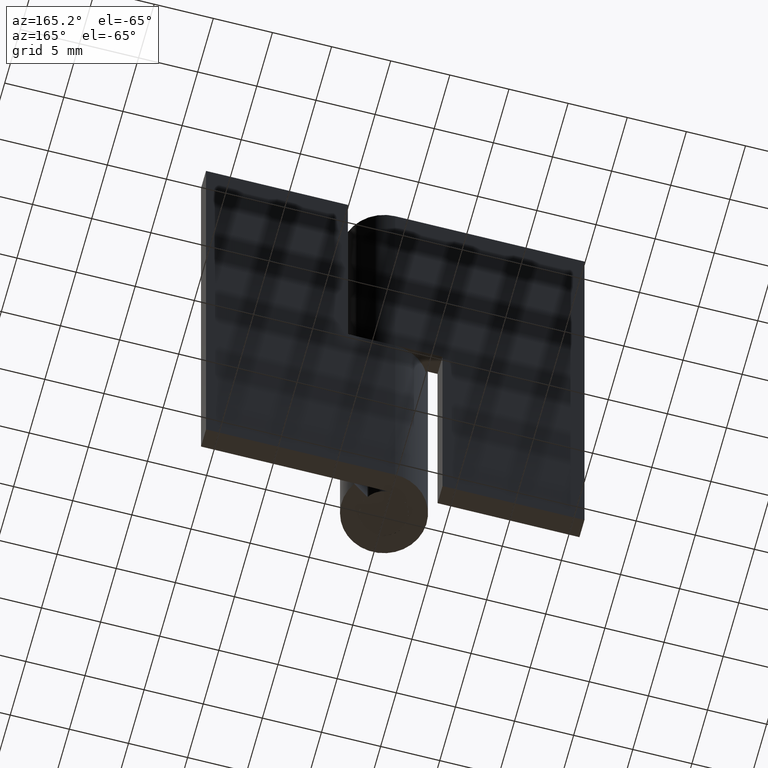
[diagram: clean part render]
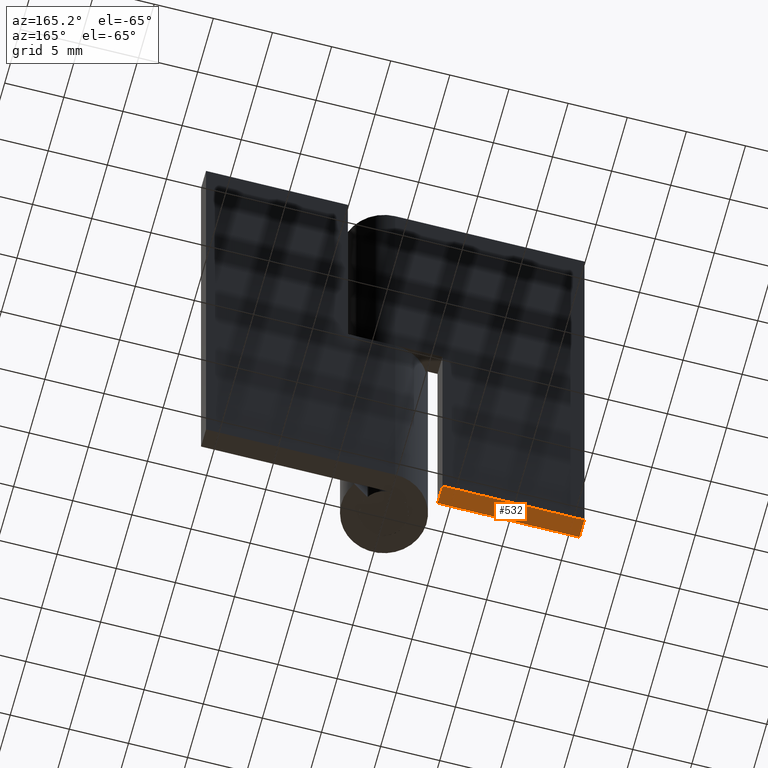
[diagram: same view with one face highlighted and labeled with its STEP entity id]
A machine part, auxiliary view. The second image highlights one B-rep face of the part: STEP entity #532.
In plain terms, the highlighted face is a freeform B-spline surface patch.
Its self-contained STEP definition (entity closure, byte-faithful):
#321=CARTESIAN_POINT('',(-4.0,2.0,0.0));
#322=VERTEX_POINT('',#321);
#328=CARTESIAN_POINT('',(-4.0,3.599998000000000,0.0));
#329=VERTEX_POINT('',#328);
#330=CARTESIAN_POINT('',(-4.0,3.599998000000000,0.0));
#331=CARTESIAN_POINT('',(-4.0,2.0,0.0));
#332=QUASI_UNIFORM_CURVE('',1,(#330,#331),.UNSPECIFIED.,.F.,.U.);
#333=EDGE_CURVE('',#329,#322,#332,.T.);
#505=CARTESIAN_POINT('',(-16.599399976741669,1.920080103001107,0.0));
#506=CARTESIAN_POINT('',(-3.400599701393248,1.920080103001107,0.0));
#507=CARTESIAN_POINT('',(-16.599399976741669,3.679917939914185,0.0));
#508=CARTESIAN_POINT('',(-3.400599701393248,3.679917939914185,0.0));
#509=B_SPLINE_SURFACE_WITH_KNOTS('',1,1,((#505,#507),(#506,#508)),.UNSPECIFIED.,.F.,.F.,.U.,(2,2),(2,2),(0.0,13.198800275348431),(0.041708334948495,0.958291687403247),.UNSPECIFIED.);
#510=ORIENTED_EDGE('',*,*,#333,.T.);
#511=CARTESIAN_POINT('',(-16.0,2.0,0.0));
#512=VERTEX_POINT('',#511);
#513=CARTESIAN_POINT('',(-16.0,2.0,0.0));
#514=CARTESIAN_POINT('',(-4.0,2.0,0.0));
#515=QUASI_UNIFORM_CURVE('',1,(#513,#514),.UNSPECIFIED.,.F.,.U.);
#516=EDGE_CURVE('',#512,#322,#515,.T.);
#517=ORIENTED_EDGE('',*,*,#516,.F.);
#518=CARTESIAN_POINT('',(-16.0,3.599998000000000,0.0));
#519=VERTEX_POINT('',#518);
#520=CARTESIAN_POINT('',(-16.0,3.599998000000000,0.0));
#521=CARTESIAN_POINT('',(-16.0,2.0,0.0));
#522=QUASI_UNIFORM_CURVE('',1,(#520,#521),.UNSPECIFIED.,.F.,.U.);
#523=EDGE_CURVE('',#519,#512,#522,.T.);
#524=ORIENTED_EDGE('',*,*,#523,.F.);
#525=CARTESIAN_POINT('',(-4.0,3.599998000000000,0.0));
#526=CARTESIAN_POINT('',(-16.0,3.599998000000000,0.0));
#527=QUASI_UNIFORM_CURVE('',1,(#525,#526),.UNSPECIFIED.,.F.,.U.);
#528=EDGE_CURVE('',#329,#519,#527,.T.);
#529=ORIENTED_EDGE('',*,*,#528,.F.);
#530=EDGE_LOOP('',(#510,#517,#524,#529));
#531=FACE_OUTER_BOUND('',#530,.T.);
#532=ADVANCED_FACE('',(#531),#509,.F.);